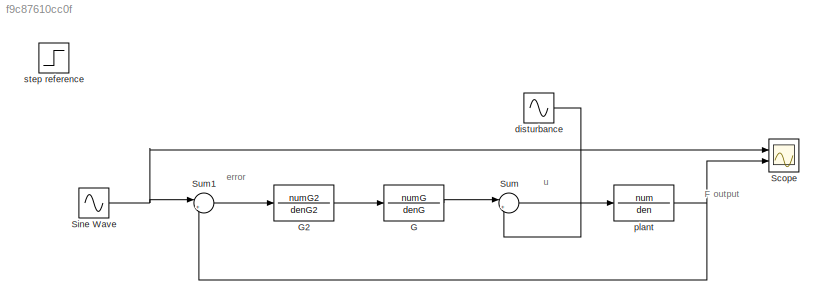
MODEL slx_f9c87610cc0f
KIND model
CONFIG AbsTol = auto
CONFIG EnableMultiTasking = off
CONFIG FixedStep = auto
CONFIG MaxStep = auto
CONFIG MinStep = auto
CONFIG RelTol = 1e-3
CONFIG SampleTimeConstraint = Unconstrained
CONFIG SolverName = VariableStepAuto
CONFIG StartTime = 0.0
CONFIG StopTime = 20
BLOCK [TransferFcn] G
  Denominator = denG
  Numerator = numG
BLOCK [TransferFcn] G2
  Denominator = denG2
  Numerator = numG2
BLOCK [Scope] Scope
  Floating = off
  NumInputPorts = 2
  Ports = [2]
  ScopeSpecificationString = Simulink.scopes.TimeScopeBlockCfg('CurrentConfiguration', extmgr.ConfigurationSet(extmgr.Configuration('Core','General UI',true),extmgr.Configuration('Core','Source UI',true),extmgr.Configuration('Sources','WiredSimulink',true),extmgr.Configuration('Visuals','Time Domain',true,'SerializedDisplays',{struct('MinYLimReal','-1.39191','MaxYLimReal','1.50782','YLabelReal','','MinYLimMag','0.00000','MaxY...<+1409ch>
BLOCK [Sin] Sine Wave
  Frequency = 3
  Ports = [0, 1]
  SampleTime = 0
BLOCK [Sum] Sum
  Inputs = |++
  Ports = [2, 1]
BLOCK [Sum] Sum1
  Inputs = |+-
  Ports = [2, 1]
BLOCK [Sin] disturbance
  Frequency = 3
  Ports = [0, 1]
  SampleTime = 0
BLOCK [TransferFcn] plant
  Denominator = den
  Numerator = num
BLOCK [Step] step reference
  SampleTime = 0
  Time = 0
ANNOTATION (root): F output
ANNOTATION (root): error
ANNOTATION (root): u
LINE G2:1 -> G:1
LINE G:1 -> Sum:1
NET Sine Wave:1 -> Scope:1, Sum1:1
LINE Sum1:1 -> G2:1
LINE Sum:1 -> plant:1
LINE disturbance:1 -> Sum:2
NET plant:1 -> Scope:2, Sum1:2
note: NET lines group one-source signal fan-out (src -> all destinations, sorted); 1:1 wires keep LINE
